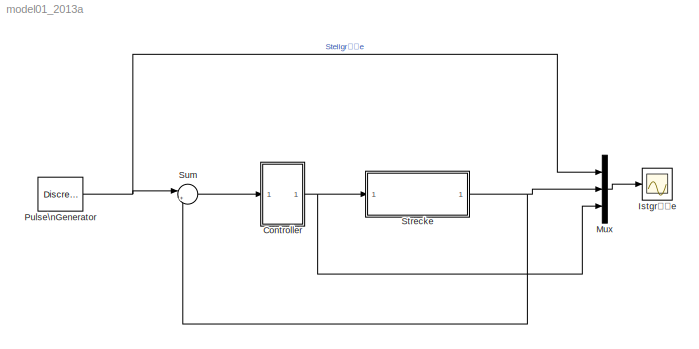
MODEL model01_2013a
KIND model
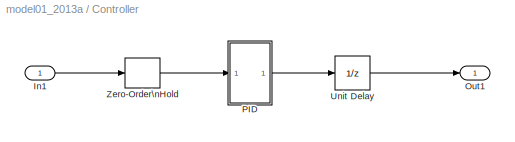
BLOCK [SubSystem] Controller
  FunctionWithSeparateData = off
  MaskHideContents = off
  MinAlgLoopOccurrences = off
  Opaque = off
  Ports = [1, 1]
  PropExecContextOutsideSubsystem = off
  RTWSystemCode = Auto
  RequestExecContextInheritance = off
  SID = 1
  SystemSampleTime = [0.05,0]
  TreatAsAtomicUnit = on
BLOCK [Inport] Controller/In1
  IconDisplay = Port number
  SID = 2
BLOCK [Outport] Controller/Out1
  IconDisplay = Port number
  SID = 16
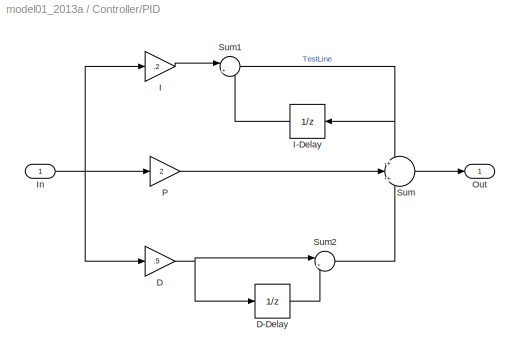
BLOCK [SubSystem] Controller/PID
  FunctionWithSeparateData = off
  MaskHideContents = off
  MinAlgLoopOccurrences = off
  Opaque = off
  Ports = [1, 1]
  PropExecContextOutsideSubsystem = off
  RTWSystemCode = Auto
  RequestExecContextInheritance = off
  SID = 3
  TreatAsAtomicUnit = on
BLOCK [Gain] Controller/PID/D
  Gain = .5
  OutDataTypeStr = Inherit: Inherit via internal rule
  ParamDataTypeStr = Inherit: Inherit via internal rule
  SID = 5
  SaturateOnIntegerOverflow = off
BLOCK [UnitDelay] Controller/PID/D-Delay
  SID = 6
  SampleTime = -1
BLOCK [Gain] Controller/PID/I
  Gain = .2
  OutDataTypeStr = Inherit: Inherit via internal rule
  ParamDataTypeStr = Inherit: Inherit via internal rule
  SID = 7
  SaturateOnIntegerOverflow = off
BLOCK [UnitDelay] Controller/PID/I-Delay
  SID = 8
  SampleTime = -1
BLOCK [Inport] Controller/PID/In
  IconDisplay = Port number
  SID = 4
BLOCK [Outport] Controller/PID/Out
  IconDisplay = Port number
  SID = 13
BLOCK [Gain] Controller/PID/P
  Gain = 2
  OutDataTypeStr = Inherit: Inherit via internal rule
  ParamDataTypeStr = Inherit: Inherit via internal rule
  SID = 9
  SaturateOnIntegerOverflow = off
BLOCK [Sum] Controller/PID/Sum
  IconShape = round
  InputSameDT = off
  Inputs = +|+|+
  OutDataTypeStr = Inherit: Inherit via internal rule
  Ports = [3, 1]
  SID = 10
  SaturateOnIntegerOverflow = off
BLOCK [Sum] Controller/PID/Sum1
  IconShape = round
  InputSameDT = off
  Inputs = |++
  OutDataTypeStr = Inherit: Inherit via internal rule
  Ports = [2, 1]
  SID = 11
  SaturateOnIntegerOverflow = off
BLOCK [Sum] Controller/PID/Sum2
  IconShape = round
  InputSameDT = off
  Inputs = |+-
  OutDataTypeStr = Inherit: Inherit via internal rule
  Ports = [2, 1]
  SID = 12
  SaturateOnIntegerOverflow = off
BLOCK [UnitDelay] Controller/Unit Delay
  SID = 14
  SampleTime = -1
BLOCK [ZeroOrderHold] Controller/Zero-Order\nHold
  SID = 15
  SampleTime = -1
BLOCK [Scope] Istgröße
  DataFormat = StructureWithTime
  Floating = off
  NumInputPorts = 1
  Ports = [1]
  SID = 17
  SampleTime = 0
  ShowLegends = off
  TimeRange = 50
  YMax = 2
  YMin = -2
  ZoomMode = xonly
BLOCK [Mux] Mux
  DisplayOption = bar
  Inputs = 3
  Ports = [3, 1]
  SID = 18
BLOCK [DiscretePulseGenerator] Pulse\nGenerator
  Ports = [0, 1]
  PulseType = Time based
  PulseWidth = 50
  SID = 19
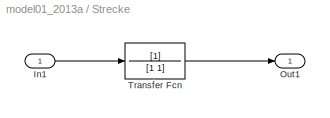
BLOCK [SubSystem] Strecke
  FunctionWithSeparateData = off
  MaskHideContents = off
  MinAlgLoopOccurrences = off
  Opaque = off
  Ports = [1, 1]
  PropExecContextOutsideSubsystem = off
  RTWSystemCode = Auto
  RequestExecContextInheritance = off
  SID = 20
BLOCK [Inport] Strecke/In1
  IconDisplay = Port number
  SID = 21
BLOCK [Outport] Strecke/Out1
  IconDisplay = Port number
  SID = 23
BLOCK [TransferFcn] Strecke/Transfer Fcn
  Denominator = [1 1]
  SID = 22
BLOCK [Sum] Sum
  IconShape = round
  InputSameDT = off
  Inputs = |+-
  OutDataTypeStr = Inherit: Inherit via internal rule
  Ports = [2, 1]
  SID = 24
  SaturateOnIntegerOverflow = off
LINE Controller/In1:1 -> Controller/Zero-Order\nHold:1
LINE Controller/PID/D-Delay:1 -> Controller/PID/Sum2:2
NET Controller/PID/D:1 -> Controller/PID/D-Delay:1, Controller/PID/Sum2:1
LINE Controller/PID/I-Delay:1 -> Controller/PID/Sum1:2
LINE Controller/PID/I:1 -> Controller/PID/Sum1:1
NET Controller/PID/In:1 -> Controller/PID/D:1, Controller/PID/I:1, Controller/PID/P:1
LINE Controller/PID/P:1 -> Controller/PID/Sum:2
NET Controller/PID/Sum1:1 -> Controller/PID/I-Delay:1, Controller/PID/Sum:1
LINE Controller/PID/Sum2:1 -> Controller/PID/Sum:3
LINE Controller/PID/Sum:1 -> Controller/PID/Out:1
LINE Controller/PID:1 -> Controller/Unit Delay:1
LINE Controller/Unit Delay:1 -> Controller/Out1:1
LINE Controller/Zero-Order\nHold:1 -> Controller/PID:1
NET Controller:1 -> Mux:3, Strecke:1
LINE Mux:1 -> Istgröße:1
NET Pulse\nGenerator:1 -> Mux:1, Sum:1
LINE Strecke/In1:1 -> Strecke/Transfer Fcn:1
LINE Strecke/Transfer Fcn:1 -> Strecke/Out1:1
NET Strecke:1 -> Mux:2, Sum:2
LINE Sum:1 -> Controller:1
note: NET lines group one-source signal fan-out (src -> all destinations, sorted); 1:1 wires keep LINE
